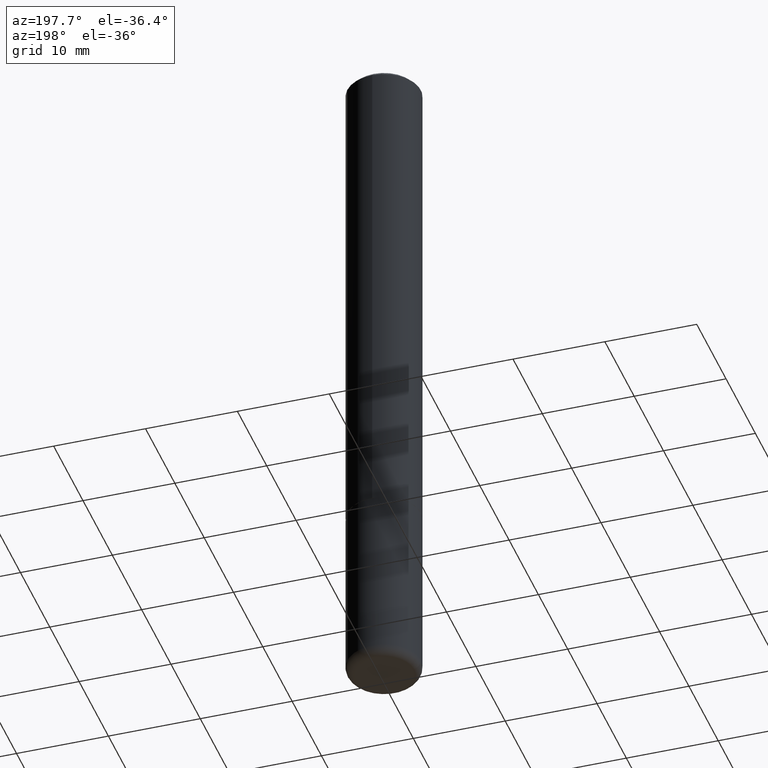
[diagram: clean part render]
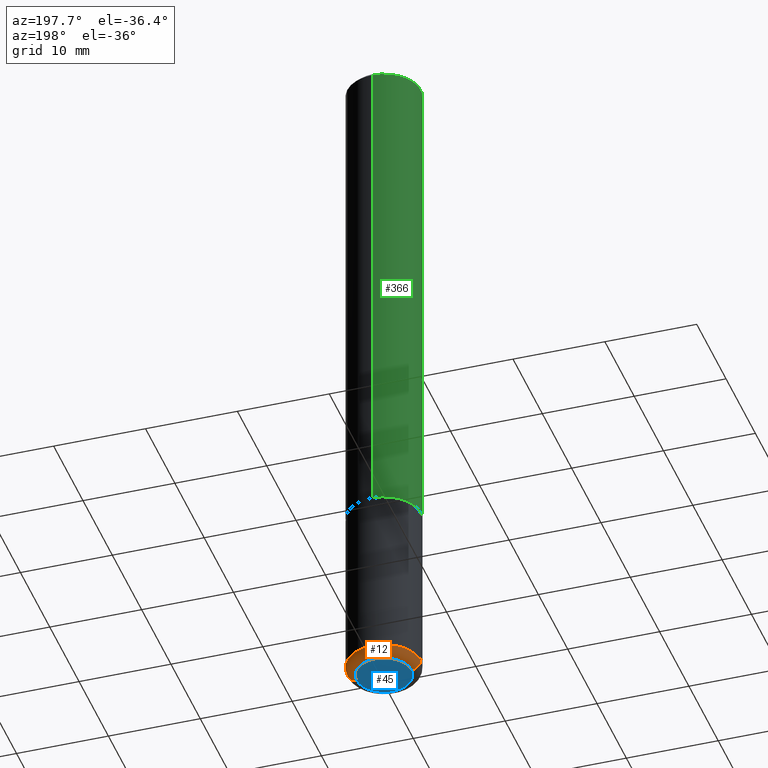
[diagram: same view with three faces highlighted in distinct colors, each labeled with its STEP entity id]
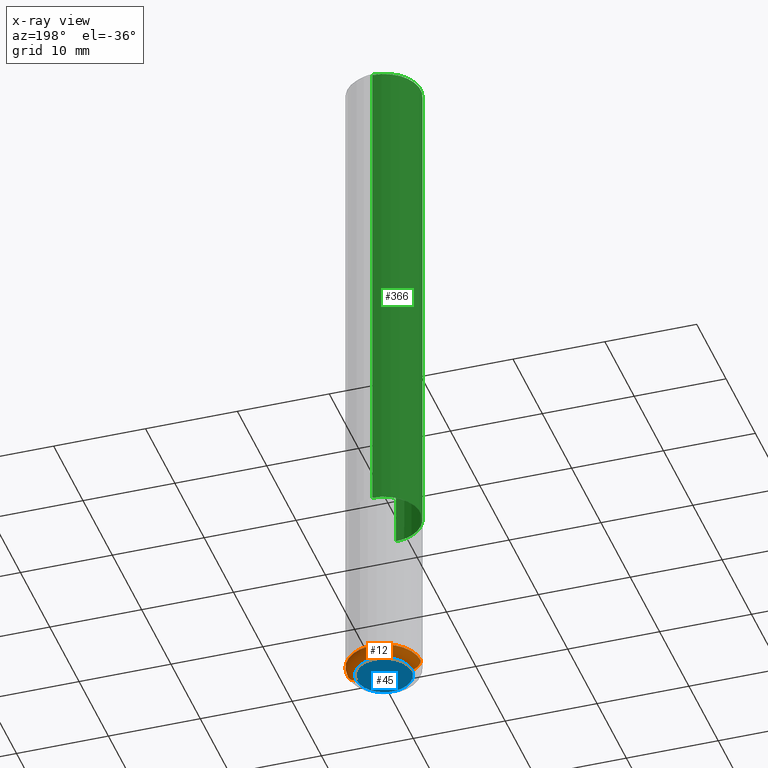
[diagram: x-ray of the same camera — body ghosted, the three highlighted faces saturated]
A machine part, auxiliary view with three faces highlighted in distinct colors.
The next image is the same camera in x-ray (body ghosted, the three faces saturated) — at least one of them is partly hidden behind the body in this view.
Their STEP definitions:

[orange] entity #12 — the highlighted toroidal blend (fillet) surface has major radius 2.9997 mm and minor (blend) radius 1.0008 mm.
#12 = ADVANCED_FACE ( 'NONE', ( #160 ), #230, .T. ) ;
#13 = DIRECTION ( 'NONE',  ( 1.000000000000000000, -6.982962677686273021E-15, 0.000000000000000000 ) ) ;
#54 = EDGE_CURVE ( 'NONE', #80, #351, #268, .T. ) ;
#57 = ORIENTED_EDGE ( 'NONE', *, *, #54, .T. ) ;
#80 = VERTEX_POINT ( 'NONE', #307 ) ;
#96 = ORIENTED_EDGE ( 'NONE', *, *, #410, .F. ) ;
#98 = EDGE_CURVE ( 'NONE', #225, #351, #223, .T. ) ;
#99 = CARTESIAN_POINT ( 'NONE',  ( 0.1180999999999999966, -1.099676962482036915E-14, -2.913399999999999768 ) ) ;
#131 = ORIENTED_EDGE ( 'NONE', *, *, #98, .F. ) ;
#138 = CARTESIAN_POINT ( 'NONE',  ( -0.1180999999999999966, -9.332930761652941905E-15, -2.913399999999999768 ) ) ;
#143 = DIRECTION ( 'NONE',  ( 7.105427357601001859E-15, 1.000000000000000000, -3.491481338843145583E-15 ) ) ;
#144 = AXIS2_PLACEMENT_3D ( 'NONE', #302, #367, #232 ) ;
#160 = FACE_OUTER_BOUND ( 'NONE', #252, .T. ) ;
#172 = DIRECTION ( 'NONE',  ( -2.445468806185136597E-29, 3.491481338843145583E-15, 1.000000000000000000 ) ) ;
#206 = DIRECTION ( 'NONE',  ( -1.000000000000000000, 7.105427357601014480E-15, 0.000000000000000000 ) ) ;
#223 = CIRCLE ( 'NONE', #144, 0.1575000000000000011 ) ;
#225 = VERTEX_POINT ( 'NONE', #293 ) ;
#230 = TOROIDAL_SURFACE ( 'NONE', #304, 0.1180999999999999966, 0.03940000000000005997 ) ;
#232 = DIRECTION ( 'NONE',  ( 1.000000000000000000, -6.982962677686261977E-15, 0.000000000000000000 ) ) ;
#233 = CARTESIAN_POINT ( 'NONE',  ( 7.220980290903470182E-29, -1.030964609733603853E-14, -2.952799999999999869 ) ) ;
#239 = CARTESIAN_POINT ( 'NONE',  ( 0.1180999999999999966, -1.113433398957078679E-14, -2.952799999999999869 ) ) ;
#252 = EDGE_LOOP ( 'NONE', ( #382, #57, #131, #96 ) ) ;
#262 = DIRECTION ( 'NONE',  ( -2.445468806185136597E-29, 3.491481338843145583E-15, 1.000000000000000000 ) ) ;
#268 = CIRCLE ( 'NONE', #319, 0.03940000000000005997 ) ;
#291 = CARTESIAN_POINT ( 'NONE',  ( 7.124628819939776708E-29, -1.017208173258561931E-14, -2.913399999999999768 ) ) ;
#293 = CARTESIAN_POINT ( 'NONE',  ( 0.1575000000000000289, -1.127189835432120758E-14, -2.913399999999999768 ) ) ;
#302 = CARTESIAN_POINT ( 'NONE',  ( 7.124628819939776708E-29, -1.017208173258561931E-14, -2.913399999999999768 ) ) ;
#304 = AXIS2_PLACEMENT_3D ( 'NONE', #291, #262, #385 ) ;
#307 = CARTESIAN_POINT ( 'NONE',  ( -0.1180999999999999966, -9.261736025083411415E-15, -2.952799999999999869 ) ) ;
#315 = EDGE_CURVE ( 'NONE', #329, #80, #330, .T. ) ;
#319 = AXIS2_PLACEMENT_3D ( 'NONE', #138, #143, #206 ) ;
#329 = VERTEX_POINT ( 'NONE', #239 ) ;
#330 = CIRCLE ( 'NONE', #416, 0.1180999999999999966 ) ;
#337 = DIRECTION ( 'NONE',  ( -6.982962677686266711E-15, -1.000000000000000000, 3.491481338843145583E-15 ) ) ;
#350 = CIRCLE ( 'NONE', #393, 0.03940000000000005997 ) ;
#351 = VERTEX_POINT ( 'NONE', #379 ) ;
#359 = DIRECTION ( 'NONE',  ( 1.000000000000000000, -6.982962677686267499E-15, 0.000000000000000000 ) ) ;
#367 = DIRECTION ( 'NONE',  ( -2.445468806185136597E-29, 3.491481338843145583E-15, 1.000000000000000000 ) ) ;
#379 = CARTESIAN_POINT ( 'NONE',  ( -0.1575000000000000289, -9.052976923763463288E-15, -2.913399999999999768 ) ) ;
#382 = ORIENTED_EDGE ( 'NONE', *, *, #315, .T. ) ;
#385 = DIRECTION ( 'NONE',  ( 1.000000000000000000, -6.982962677686271444E-15, 4.883557194083114583E-29 ) ) ;
#393 = AXIS2_PLACEMENT_3D ( 'NONE', #99, #337, #359 ) ;
#410 = EDGE_CURVE ( 'NONE', #329, #225, #350, .T. ) ;
#416 = AXIS2_PLACEMENT_3D ( 'NONE', #233, #172, #13 ) ;

[blue] entity #45 — the highlighted planar face has unit normal (0, -0, -1).
#13 = DIRECTION ( 'NONE',  ( 1.000000000000000000, -6.982962677686273021E-15, 0.000000000000000000 ) ) ;
#27 = DIRECTION ( 'NONE',  ( -2.445468806185136597E-29, 3.491481338843145583E-15, 1.000000000000000000 ) ) ;
#45 = ADVANCED_FACE ( 'NONE', ( #308 ), #174, .T. ) ;
#67 = CIRCLE ( 'NONE', #103, 0.1180999999999999966 ) ;
#80 = VERTEX_POINT ( 'NONE', #307 ) ;
#103 = AXIS2_PLACEMENT_3D ( 'NONE', #282, #27, #253 ) ;
#140 = DIRECTION ( 'NONE',  ( 2.438088387897960049E-29, -3.491481338843145188E-15, -1.000000000000000000 ) ) ;
#172 = DIRECTION ( 'NONE',  ( -2.445468806185136597E-29, 3.491481338843145583E-15, 1.000000000000000000 ) ) ;
#174 = PLANE ( 'NONE',  #209 ) ;
#188 = ORIENTED_EDGE ( 'NONE', *, *, #315, .F. ) ;
#204 = EDGE_CURVE ( 'NONE', #80, #329, #67, .T. ) ;
#209 = AXIS2_PLACEMENT_3D ( 'NONE', #275, #140, #395 ) ;
#233 = CARTESIAN_POINT ( 'NONE',  ( 7.220980290903470182E-29, -1.030964609733603853E-14, -2.952799999999999869 ) ) ;
#239 = CARTESIAN_POINT ( 'NONE',  ( 0.1180999999999999966, -1.113433398957078679E-14, -2.952799999999999869 ) ) ;
#253 = DIRECTION ( 'NONE',  ( 1.000000000000000000, -6.982962677686273021E-15, 0.000000000000000000 ) ) ;
#275 = CARTESIAN_POINT ( 'NONE',  ( 7.220980290903470182E-29, -1.030964609733603853E-14, -2.952799999999999869 ) ) ;
#282 = CARTESIAN_POINT ( 'NONE',  ( 7.220980290903470182E-29, -1.030964609733603853E-14, -2.952799999999999869 ) ) ;
#290 = EDGE_LOOP ( 'NONE', ( #188, #412 ) ) ;
#307 = CARTESIAN_POINT ( 'NONE',  ( -0.1180999999999999966, -9.261736025083411415E-15, -2.952799999999999869 ) ) ;
#308 = FACE_OUTER_BOUND ( 'NONE', #290, .T. ) ;
#315 = EDGE_CURVE ( 'NONE', #329, #80, #330, .T. ) ;
#329 = VERTEX_POINT ( 'NONE', #239 ) ;
#330 = CIRCLE ( 'NONE', #416, 0.1180999999999999966 ) ;
#395 = DIRECTION ( 'NONE',  ( -1.000000000000000000, 6.982962677686265922E-15, -4.876176775795935793E-29 ) ) ;
#412 = ORIENTED_EDGE ( 'NONE', *, *, #204, .F. ) ;
#416 = AXIS2_PLACEMENT_3D ( 'NONE', #233, #172, #13 ) ;

[green] entity #366 — the highlighted cylindrical surface (partial cylindrical patch) has radius 4.0005 mm, axis along (-0, 0, 1).
#3 = DIRECTION ( 'NONE',  ( -2.444928043019069804E-29, 3.492255742475281487E-15, 1.000000000000000000 ) ) ;
#5 = CYLINDRICAL_SURFACE ( 'NONE', #210, 0.1575000000000001676 ) ;
#10 = VECTOR ( 'NONE', #78, 39.37007874015748143 ) ;
#16 = CARTESIAN_POINT ( 'NONE',  ( -1.099816621735587875E-15, -0.1575000000000001676, 5.500302794398574170E-16 ) ) ;
#17 = CARTESIAN_POINT ( 'NONE',  ( 1.099816621735587480E-15, 0.1574999999999999456, -0.02000000000000058328 ) ) ;
#34 = CARTESIAN_POINT ( 'NONE',  ( 0.000000000000000000, 0.000000000000000000, 0.000000000000000000 ) ) ;
#35 = EDGE_CURVE ( 'NONE', #266, #132, #405, .T. ) ;
#55 = VERTEX_POINT ( 'NONE', #17 ) ;
#60 = ORIENTED_EDGE ( 'NONE', *, *, #137, .T. ) ;
#61 = CARTESIAN_POINT ( 'NONE',  ( 4.889856086038147210E-31, -6.984511484950574659E-17, -0.02000000000000003511 ) ) ;
#69 = LINE ( 'NONE', #235, #375 ) ;
#78 = DIRECTION ( 'NONE',  ( -2.444928043019069524E-29, 3.492255742475281487E-15, 1.000000000000000000 ) ) ;
#97 = DIRECTION ( 'NONE',  ( -6.982962677686265133E-15, -1.000000000000000000, 3.492255742475281487E-15 ) ) ;
#102 = EDGE_CURVE ( 'NONE', #266, #55, #69, .T. ) ;
#105 = DIRECTION ( 'NONE',  ( -2.444928043019069804E-29, 3.492255742475281487E-15, 1.000000000000000000 ) ) ;
#112 = LINE ( 'NONE', #16, #10 ) ;
#116 = CARTESIAN_POINT ( 'NONE',  ( 5.291802256310474180E-29, -7.558638329013498276E-15, -2.164399999999999658 ) ) ;
#132 = VERTEX_POINT ( 'NONE', #243 ) ;
#134 = ORIENTED_EDGE ( 'NONE', *, *, #228, .F. ) ;
#136 = AXIS2_PLACEMENT_3D ( 'NONE', #61, #320, #328 ) ;
#137 = EDGE_CURVE ( 'NONE', #132, #380, #112, .T. ) ;
#171 = CARTESIAN_POINT ( 'NONE',  ( 1.119104808822185805E-15, 0.1574999999999927569, -2.164400000000000102 ) ) ;
#176 = ORIENTED_EDGE ( 'NONE', *, *, #102, .F. ) ;
#210 = AXIS2_PLACEMENT_3D ( 'NONE', #34, #3, #97 ) ;
#228 = EDGE_CURVE ( 'NONE', #55, #380, #240, .T. ) ;
#235 = CARTESIAN_POINT ( 'NONE',  ( 1.119104808822158787E-15, 0.1575000000000001676, -5.500302794398574170E-16 ) ) ;
#240 = CIRCLE ( 'NONE', #136, 0.1575000000000000289 ) ;
#243 = CARTESIAN_POINT ( 'NONE',  ( -1.099816621735536007E-15, -0.1575000000000078559, -2.164399999999999213 ) ) ;
#266 = VERTEX_POINT ( 'NONE', #171 ) ;
#272 = CARTESIAN_POINT ( 'NONE',  ( -1.080528434649015779E-15, -0.1575000000000000844, -0.01999999999999948347 ) ) ;
#274 = DIRECTION ( 'NONE',  ( -6.982962677686265133E-15, -1.000000000000000000, 3.469013325287946588E-15 ) ) ;
#299 = AXIS2_PLACEMENT_3D ( 'NONE', #116, #105, #274 ) ;
#301 = FACE_OUTER_BOUND ( 'NONE', #313, .T. ) ;
#313 = EDGE_LOOP ( 'NONE', ( #176, #348, #60, #134 ) ) ;
#320 = DIRECTION ( 'NONE',  ( -2.444928043019069804E-29, 3.492255742475281487E-15, 1.000000000000000000 ) ) ;
#328 = DIRECTION ( 'NONE',  ( -6.982962677686264344E-15, -1.000000000000000000, 3.496114991891764787E-15 ) ) ;
#348 = ORIENTED_EDGE ( 'NONE', *, *, #35, .T. ) ;
#364 = DIRECTION ( 'NONE',  ( -2.444928043019069524E-29, 3.492255742475281487E-15, 1.000000000000000000 ) ) ;
#366 = ADVANCED_FACE ( 'NONE', ( #301 ), #5, .T. ) ;
#375 = VECTOR ( 'NONE', #364, 39.37007874015748143 ) ;
#380 = VERTEX_POINT ( 'NONE', #272 ) ;
#405 = CIRCLE ( 'NONE', #299, 0.1575000000000003064 ) ;